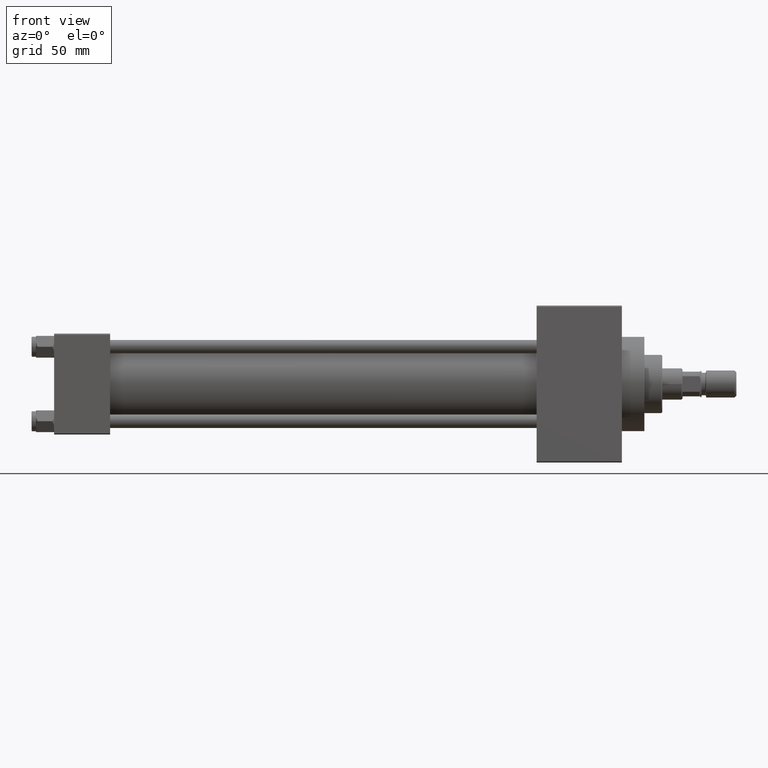
[diagram: clean part render]
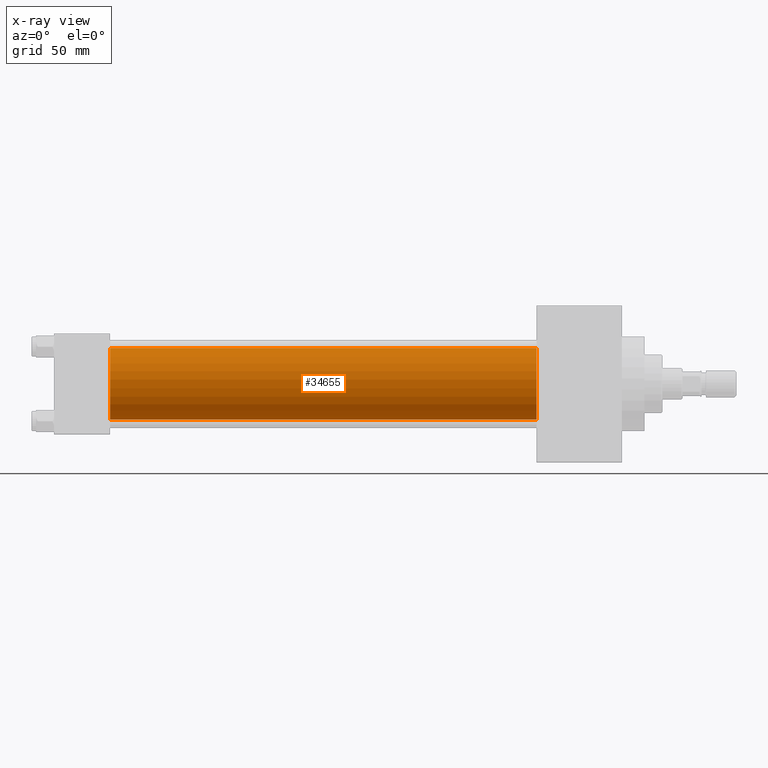
[diagram: x-ray — body ghosted, one internal face saturated and labeled with its STEP entity id]
A machine part, front view, then the same camera in x-ray: the body is ghosted and one INTERNAL B-rep face — a face not visible from any outside direction — is saturated and labeled: STEP entity #34655.
In plain terms, the highlighted cylindrical surface (edge-blend (fillet) strip) has radius 16 mm, axis along (-1, -0, -0).
Its self-contained STEP definition (entity closure, byte-faithful):
#252 = CARTESIAN_POINT ( 'NONE',  ( 25.00000000000000000, -6.426503353294456087E-16, -16.00000000000000000 ) ) ;
#361 = DIRECTION ( 'NONE',  ( 1.000000000000000000, 0.000000000000000000, 0.000000000000000000 ) ) ;
#378 = CIRCLE ( 'NONE', #11669, 16.00000000000000000 ) ;
#2259 = CARTESIAN_POINT ( 'NONE',  ( 215.0000000000000000, -6.426503353294456087E-16, -16.00000000000000000 ) ) ;
#5630 = EDGE_CURVE ( 'NONE', #29164, #35425, #378, .T. ) ;
#5833 = DIRECTION ( 'NONE',  ( 0.000000000000000000, 0.000000000000000000, 1.000000000000000000 ) ) ;
#8383 = CARTESIAN_POINT ( 'NONE',  ( 215.0000000000000000, -6.426503353294456087E-16, -16.00000000000000000 ) ) ;
#8849 = EDGE_LOOP ( 'NONE', ( #11007, #23160, #47280, #25497 ) ) ;
#9621 = FACE_OUTER_BOUND ( 'NONE', #8849, .T. ) ;
#11007 = ORIENTED_EDGE ( 'NONE', *, *, #5630, .T. ) ;
#11669 = AXIS2_PLACEMENT_3D ( 'NONE', #26757, #19463, #31016 ) ;
#13872 = LINE ( 'NONE', #2259, #17200 ) ;
#16271 = VERTEX_POINT ( 'NONE', #252 ) ;
#17152 = CARTESIAN_POINT ( 'NONE',  ( 215.0000000000000000, -2.602085213965210642E-15, 16.00000000000000000 ) ) ;
#17200 = VECTOR ( 'NONE', #17641, 1000.000000000000000 ) ;
#17641 = DIRECTION ( 'NONE',  ( -1.000000000000000000, -0.000000000000000000, -0.000000000000000000 ) ) ;
#19463 = DIRECTION ( 'NONE',  ( 1.000000000000000000, 0.000000000000000000, 0.000000000000000000 ) ) ;
#20828 = AXIS2_PLACEMENT_3D ( 'NONE', #29229, #40335, #5833 ) ;
#22411 = CIRCLE ( 'NONE', #48099, 16.00000000000000000 ) ;
#23160 = ORIENTED_EDGE ( 'NONE', *, *, #29379, .T. ) ;
#24954 = CYLINDRICAL_SURFACE ( 'NONE', #20828, 16.00000000000000000 ) ;
#25039 = EDGE_CURVE ( 'NONE', #29164, #29370, #43317, .T. ) ;
#25497 = ORIENTED_EDGE ( 'NONE', *, *, #25039, .F. ) ;
#26757 = CARTESIAN_POINT ( 'NONE',  ( 215.0000000000000000, -2.602085213965210642E-15, 0.000000000000000000 ) ) ;
#29164 = VERTEX_POINT ( 'NONE', #46113 ) ;
#29229 = CARTESIAN_POINT ( 'NONE',  ( 215.0000000000000000, -2.602085213965210642E-15, 0.000000000000000000 ) ) ;
#29370 = VERTEX_POINT ( 'NONE', #41319 ) ;
#29379 = EDGE_CURVE ( 'NONE', #35425, #16271, #13872, .T. ) ;
#31016 = DIRECTION ( 'NONE',  ( 0.000000000000000000, 0.000000000000000000, -1.000000000000000000 ) ) ;
#34316 = EDGE_CURVE ( 'NONE', #29370, #16271, #22411, .T. ) ;
#34655 = ADVANCED_FACE ( 'NONE', ( #9621 ), #24954, .F. ) ;
#34876 = CARTESIAN_POINT ( 'NONE',  ( 25.00000000000000000, -2.602085213965210642E-15, 0.000000000000000000 ) ) ;
#35425 = VERTEX_POINT ( 'NONE', #8383 ) ;
#39545 = VECTOR ( 'NONE', #43815, 1000.000000000000000 ) ;
#40335 = DIRECTION ( 'NONE',  ( -1.000000000000000000, -0.000000000000000000, -0.000000000000000000 ) ) ;
#41319 = CARTESIAN_POINT ( 'NONE',  ( 25.00000000000000000, -2.602085213965210642E-15, 16.00000000000000000 ) ) ;
#43317 = LINE ( 'NONE', #17152, #39545 ) ;
#43815 = DIRECTION ( 'NONE',  ( -1.000000000000000000, -0.000000000000000000, -0.000000000000000000 ) ) ;
#46113 = CARTESIAN_POINT ( 'NONE',  ( 215.0000000000000000, -2.602085213965210642E-15, 16.00000000000000000 ) ) ;
#47280 = ORIENTED_EDGE ( 'NONE', *, *, #34316, .F. ) ;
#48099 = AXIS2_PLACEMENT_3D ( 'NONE', #34876, #361, #48159 ) ;
#48159 = DIRECTION ( 'NONE',  ( 0.000000000000000000, 0.000000000000000000, -1.000000000000000000 ) ) ;